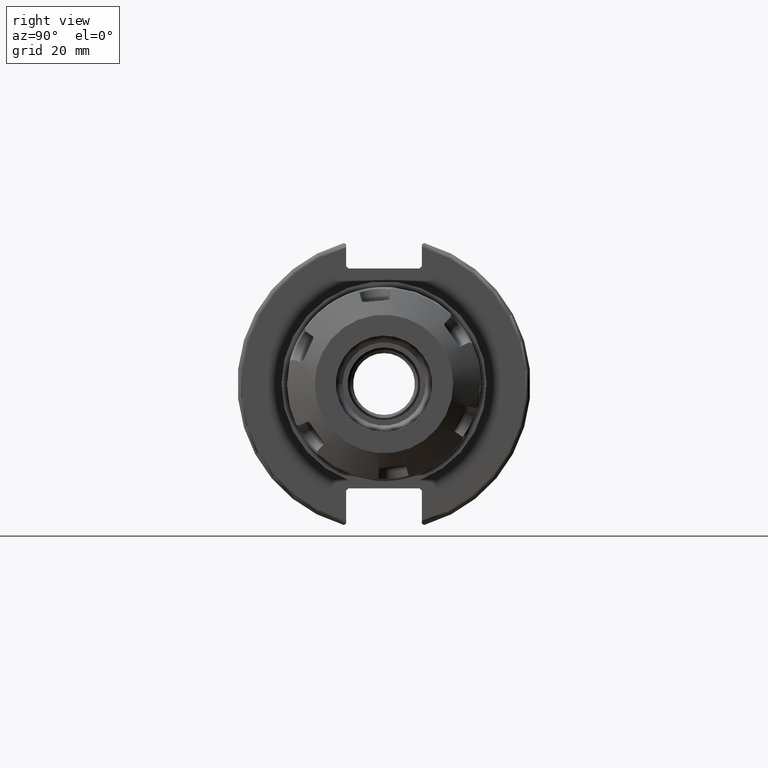
[diagram: clean part render]
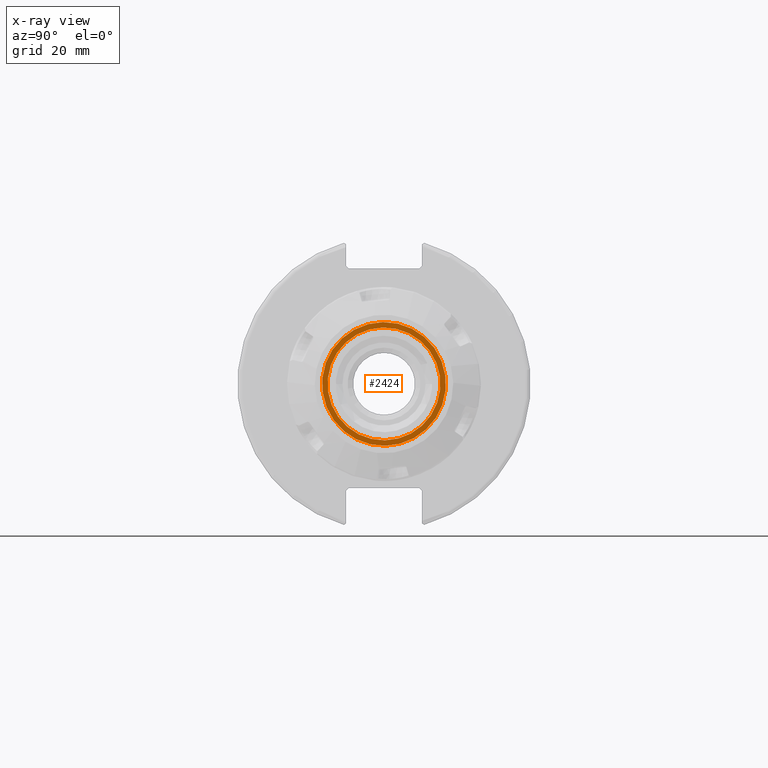
[diagram: x-ray — body ghosted, one internal face saturated and labeled with its STEP entity id]
A machine part, right view, then the same camera in x-ray: the body is ghosted and one INTERNAL B-rep face — a face not visible from any outside direction — is saturated and labeled: STEP entity #2424.
In plain terms, the highlighted planar face has unit normal (1, 0, 0).
Its self-contained STEP definition (entity closure, byte-faithful):
#232=FACE_BOUND('',#553,.T.);
#267=PLANE('',#2700);
#399=FACE_OUTER_BOUND('',#552,.T.);
#552=EDGE_LOOP('',(#1961));
#553=EDGE_LOOP('',(#1962));
#1011=CIRCLE('',#2699,13.4);
#1012=CIRCLE('',#2701,12.215);
#1164=VERTEX_POINT('',#3932);
#1165=VERTEX_POINT('',#3936);
#1445=EDGE_CURVE('',#1164,#1164,#1011,.T.);
#1446=EDGE_CURVE('',#1165,#1165,#1012,.T.);
#1961=ORIENTED_EDGE('',*,*,#1445,.F.);
#1962=ORIENTED_EDGE('',*,*,#1446,.T.);
#2424=ADVANCED_FACE('',(#399,#232),#267,.F.);
#2699=AXIS2_PLACEMENT_3D('',#3934,#3145,#3146);
#2700=AXIS2_PLACEMENT_3D('',#3935,#3147,#3148);
#2701=AXIS2_PLACEMENT_3D('',#3937,#3149,#3150);
#3145=DIRECTION('center_axis',(1.,0.,0.));
#3146=DIRECTION('ref_axis',(0.,1.,0.));
#3147=DIRECTION('center_axis',(1.,0.,0.));
#3148=DIRECTION('ref_axis',(0.,-1.,0.));
#3149=DIRECTION('center_axis',(1.,0.,0.));
#3150=DIRECTION('ref_axis',(0.,1.,0.));
#3932=CARTESIAN_POINT('',(6.3,13.4,1.64102671085745E-15));
#3934=CARTESIAN_POINT('Origin',(6.3,0.,0.));
#3935=CARTESIAN_POINT('Origin',(6.3,0.,0.));
#3936=CARTESIAN_POINT('',(6.30000000000012,-12.2150000000002,1.49590606515852E-15));
#3937=CARTESIAN_POINT('Origin',(6.3,0.,0.));